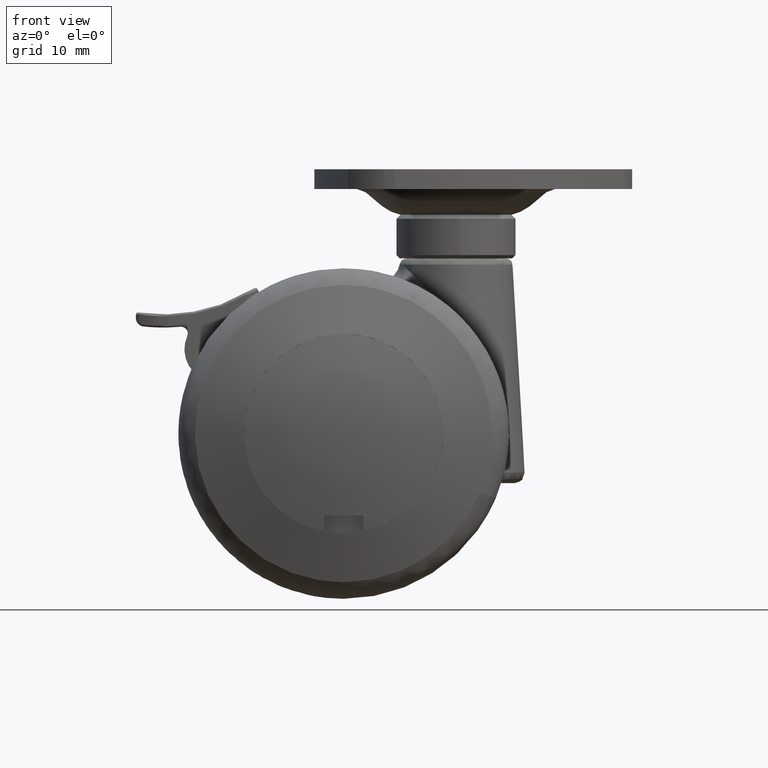
[diagram: clean part render]
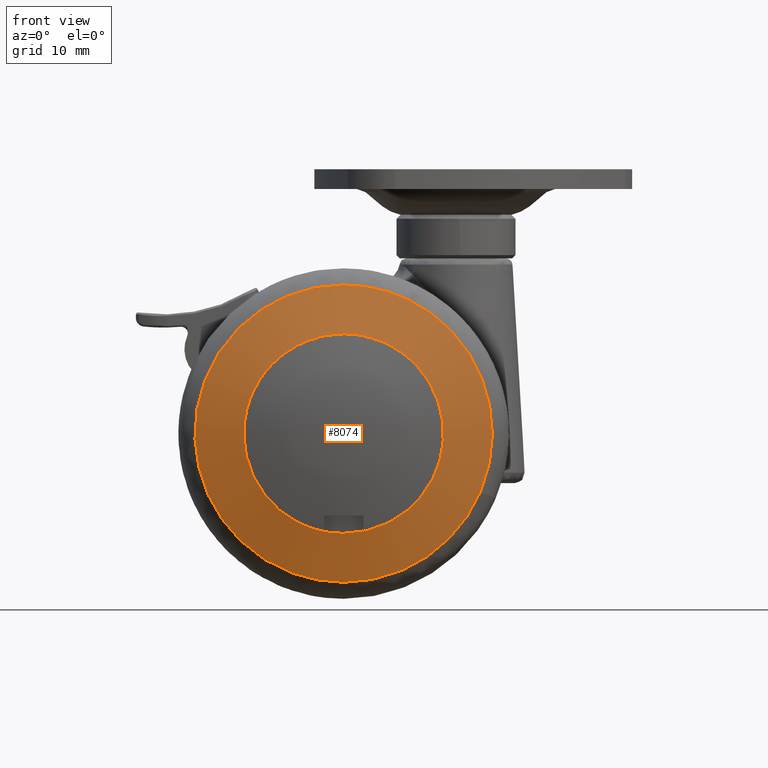
[diagram: same view with one face highlighted and labeled with its STEP entity id]
A machine part, front view. The second image highlights one B-rep face of the part: STEP entity #8074.
In plain terms, the highlighted face is a freeform B-spline surface patch.
Its self-contained STEP definition (entity closure, byte-faithful):
#7129=CARTESIAN_POINT('',(14.994446374600731,-22.500000000000000,-1.782306908599554));
#7130=VERTEX_POINT('',#7129);
#7136=CARTESIAN_POINT('',(0.0,-22.500000000000000,15.100001765886200));
#7137=VERTEX_POINT('',#7136);
#7138=CARTESIAN_POINT('',(14.994446374600738,-22.500000000000000,-1.782306908599555));
#7139=CARTESIAN_POINT('',(15.100001765886201,-22.500000000000000,-0.894279161936176));
#7140=CARTESIAN_POINT('',(15.100001765886200,-22.500000000000000,0.0));
#7141=CARTESIAN_POINT('',(15.100001765886196,-22.500000000000004,15.100001765886196));
#7142=CARTESIAN_POINT('',(0.0,-22.500000000000000,15.100001765886200));
#7150=(BOUNDED_CURVE()B_SPLINE_CURVE(2,(#7138,#7139,#7140,#7141,#7142),.UNSPECIFIED.,.F.,.U.)B_SPLINE_CURVE_WITH_KNOTS((3,2,3),(0.229562588379487,0.250000000000000,0.500000000000000),.UNSPECIFIED.)CURVE()GEOMETRIC_REPRESENTATION_ITEM()RATIONAL_B_SPLINE_CURVE((0.956026979325841,0.976056082905009,1.0,0.707106781186547,1.0))REPRESENTATION_ITEM(''));
#7151=EDGE_CURVE('',#7130,#7137,#7150,.T.);
#7153=CARTESIAN_POINT('',(-15.071838210919481,-22.500000000000000,0.921809601078580));
#7154=VERTEX_POINT('',#7153);
#7155=CARTESIAN_POINT('',(0.0,-22.500000000000000,15.100001765886200));
#7156=CARTESIAN_POINT('',(-14.204685391597728,-22.500000000000000,15.100001765886196));
#7157=CARTESIAN_POINT('',(-15.071838210919484,-22.500000000000000,0.921809601078580));
#7165=(BOUNDED_CURVE()B_SPLINE_CURVE(2,(#7155,#7156,#7157),.UNSPECIFIED.,.F.,.U.)B_SPLINE_CURVE_WITH_KNOTS((3,3),(0.500000000000000,0.739333230438314),.UNSPECIFIED.)CURVE()GEOMETRIC_REPRESENTATION_ITEM()RATIONAL_B_SPLINE_CURVE((1.0,0.719603679071602,0.976072616469698))REPRESENTATION_ITEM(''));
#7166=EDGE_CURVE('',#7137,#7154,#7165,.T.);
#7240=CARTESIAN_POINT('',(0.0,-22.500000000000000,-15.100001765886200));
#7241=VERTEX_POINT('',#7240);
#7242=CARTESIAN_POINT('',(-15.071838210919484,-22.500000000000000,0.921809601078580));
#7243=CARTESIAN_POINT('',(-15.100001765886200,-22.500000000000004,0.461335033543612));
#7244=CARTESIAN_POINT('',(-15.100001765886200,-22.500000000000000,0.0));
#7245=CARTESIAN_POINT('',(-15.100001765886196,-22.500000000000004,-15.100001765886196));
#7246=CARTESIAN_POINT('',(0.0,-22.500000000000000,-15.100001765886200));
#7254=(BOUNDED_CURVE()B_SPLINE_CURVE(2,(#7242,#7243,#7244,#7245,#7246),.UNSPECIFIED.,.F.,.U.)B_SPLINE_CURVE_WITH_KNOTS((3,2,3),(0.739333230438314,0.750000000000000,1.0),.UNSPECIFIED.)CURVE()GEOMETRIC_REPRESENTATION_ITEM()RATIONAL_B_SPLINE_CURVE((0.976072616469698,0.987503102114946,1.0,0.707106781186547,1.0))REPRESENTATION_ITEM(''));
#7255=EDGE_CURVE('',#7154,#7241,#7254,.T.);
#7257=CARTESIAN_POINT('',(0.0,-22.500000000000000,-15.100001765886200));
#7258=CARTESIAN_POINT('',(13.411446089595476,-22.500000000000000,-15.100001765886207));
#7259=CARTESIAN_POINT('',(14.994446374600738,-22.500000000000000,-1.782306908599555));
#7267=(BOUNDED_CURVE()B_SPLINE_CURVE(2,(#7257,#7258,#7259),.UNSPECIFIED.,.F.,.U.)B_SPLINE_CURVE_WITH_KNOTS((3,3),(0.0,0.229562588379487),.UNSPECIFIED.)CURVE()GEOMETRIC_REPRESENTATION_ITEM()RATIONAL_B_SPLINE_CURVE((1.0,0.731050698281538,0.956026979325841))REPRESENTATION_ITEM(''));
#7268=EDGE_CURVE('',#7241,#7130,#7267,.T.);
#7709=CARTESIAN_POINT('',(9.975672701329613,-20.052650238607200,20.167695820434520));
#7710=VERTEX_POINT('',#7709);
#7711=CARTESIAN_POINT('',(0.0,-20.052650239280950,22.500000010548298));
#7712=VERTEX_POINT('',#7711);
#7713=CARTESIAN_POINT('',(9.975672701329613,-20.052650238607203,20.167695820434524));
#7714=CARTESIAN_POINT('',(5.260481765120542,-20.052650239280958,22.500000010548298));
#7715=CARTESIAN_POINT('',(0.0,-20.052650239280950,22.500000010548298));
#7723=(BOUNDED_CURVE()B_SPLINE_CURVE(2,(#7713,#7714,#7715),.UNSPECIFIED.,.F.,.U.)B_SPLINE_CURVE_WITH_KNOTS((3,3),(0.424637790835173,0.500000000000000),.UNSPECIFIED.)CURVE()GEOMETRIC_REPRESENTATION_ITEM()RATIONAL_B_SPLINE_CURVE((0.876646594192723,0.911707679923284,1.0))REPRESENTATION_ITEM(''));
#7724=EDGE_CURVE('',#7710,#7712,#7723,.T.);
#7744=CARTESIAN_POINT('',(20.705216575703830,-20.052650239161910,-8.805907508094617));
#7745=VERTEX_POINT('',#7744);
#7759=CARTESIAN_POINT('',(0.0,-20.052650239280950,-22.500000010548298));
#7760=VERTEX_POINT('',#7759);
#7761=CARTESIAN_POINT('',(0.0,-20.052650239280950,-22.500000010548298));
#7762=CARTESIAN_POINT('',(14.881132990301916,-20.052650239280950,-22.500000010548295));
#7763=CARTESIAN_POINT('',(20.705216575703833,-20.052650239161910,-8.805907508094617));
#7771=(BOUNDED_CURVE()B_SPLINE_CURVE(2,(#7761,#7762,#7763),.UNSPECIFIED.,.F.,.U.)B_SPLINE_CURVE_WITH_KNOTS((3,3),(0.0,0.183550134662797),.UNSPECIFIED.)CURVE()GEOMETRIC_REPRESENTATION_ITEM()RATIONAL_B_SPLINE_CURVE((1.0,0.784957640979883,0.885683713610550))REPRESENTATION_ITEM(''));
#7772=EDGE_CURVE('',#7760,#7745,#7771,.T.);
#7774=CARTESIAN_POINT('',(0.0,-20.052650239280950,22.500000010548298));
#7775=CARTESIAN_POINT('',(-22.500000010548291,-20.052650239280958,22.500000010548291));
#7776=CARTESIAN_POINT('',(-22.500000010548298,-20.052650239280950,0.0));
#7777=CARTESIAN_POINT('',(-22.500000010548291,-20.052650239280958,-22.500000010548291));
#7778=CARTESIAN_POINT('',(0.0,-20.052650239280950,-22.500000010548298));
#7786=(BOUNDED_CURVE()B_SPLINE_CURVE(2,(#7774,#7775,#7776,#7777,#7778),.UNSPECIFIED.,.F.,.U.)B_SPLINE_CURVE_WITH_KNOTS((3,2,3),(0.500000000000000,0.750000000000000,1.0),.UNSPECIFIED.)CURVE()GEOMETRIC_REPRESENTATION_ITEM()RATIONAL_B_SPLINE_CURVE((1.0,0.707106781186548,1.0,0.707106781186548,1.0))REPRESENTATION_ITEM(''));
#7787=EDGE_CURVE('',#7712,#7760,#7786,.T.);
#7809=CARTESIAN_POINT('',(20.705216575703833,-20.052650239161910,-8.805907508094617));
#7810=CARTESIAN_POINT('',(22.500000010548302,-20.052650239280954,-4.585856400661019));
#7811=CARTESIAN_POINT('',(22.500000010548298,-20.052650239280950,0.0));
#7812=CARTESIAN_POINT('',(22.500000010548302,-20.052650239280958,13.972709978107973));
#7813=CARTESIAN_POINT('',(9.975672701329613,-20.052650238607196,20.167695820434517));
#7821=(BOUNDED_CURVE()B_SPLINE_CURVE(2,(#7809,#7810,#7811,#7812,#7813),.UNSPECIFIED.,.F.,.U.)B_SPLINE_CURVE_WITH_KNOTS((3,2,3),(0.183550134662797,0.250000000000000,0.424637790835173),.UNSPECIFIED.)CURVE()GEOMETRIC_REPRESENTATION_ITEM()RATIONAL_B_SPLINE_CURVE((0.885683713610550,0.922149140206664,1.0,0.795399101263263,0.876646594192723))REPRESENTATION_ITEM(''));
#7822=EDGE_CURVE('',#7745,#7710,#7821,.T.);
#8038=CARTESIAN_POINT('',(-23.529031152138892,-14.358802987606852,-23.529032246446722));
#8039=CARTESIAN_POINT('',(-12.279879532432092,-19.174364121991974,-24.559760207110013));
#8040=CARTESIAN_POINT('',(12.279867601254047,-19.174364121991953,-24.559760207110013));
#8041=CARTESIAN_POINT('',(23.529010210098853,-14.358811952515833,-23.529034165305625));
#8042=CARTESIAN_POINT('',(-24.559759164940136,-19.174364589546670,-12.279880153592970));
#8043=CARTESIAN_POINT('',(-12.842464883672800,-24.431162000000089,-12.842465480960909));
#8044=CARTESIAN_POINT('',(12.842452405884670,-24.431162000000079,-12.842465480960909));
#8045=CARTESIAN_POINT('',(24.559737393240539,-19.174374357104799,-12.279881198922373));
#8046=CARTESIAN_POINT('',(-24.559759164940136,-19.174364589546670,12.279879656306047));
#8047=CARTESIAN_POINT('',(-12.842464883672800,-24.431162000000089,12.842464960891490));
#8048=CARTESIAN_POINT('',(12.842452405884670,-24.431162000000079,12.842464960891490));
#8049=CARTESIAN_POINT('',(24.559737393240539,-19.174374357104799,12.279880701635408));
#8050=CARTESIAN_POINT('',(-23.529031232116207,-14.358803361260954,23.529031373590627));
#8051=CARTESIAN_POINT('',(-12.279879576001029,-19.174364529100203,24.559759299674045));
#8052=CARTESIAN_POINT('',(12.279867644822941,-19.174364529100181,24.559759299674045));
#8053=CARTESIAN_POINT('',(23.529010290076094,-14.358812326170000,23.529033292449469));
#8061=(BOUNDED_SURFACE()B_SPLINE_SURFACE(2,2,((#8038,#8042,#8046,#8050),(#8039,#8043,#8047,#8051),(#8040,#8044,#8048,#8052),(#8041,#8045,#8049,#8053)),.UNSPECIFIED.,.F.,.F.,.U.)B_SPLINE_SURFACE_WITH_KNOTS((3,1,3),(3,1,3),(9.826574003028870,34.408243677051843,58.989889467430118),(9.826572859764099,34.408243677051850,58.989913498878479),.UNSPECIFIED.)GEOMETRIC_REPRESENTATION_ITEM()RATIONAL_B_SPLINE_SURFACE(((1.091627173310567,1.045813584524547,1.045813584524547,1.091627169600027),(1.045813588786020,1.0,1.0,1.045813585075480),(1.045813588786020,1.0,1.0,1.045813585075480),(1.091627084285301,1.045813495499281,1.045813495499281,1.091627080574761)))REPRESENTATION_ITEM('')SURFACE());
#8062=ORIENTED_EDGE('',*,*,#7772,.T.);
#8063=ORIENTED_EDGE('',*,*,#7822,.T.);
#8064=ORIENTED_EDGE('',*,*,#7724,.T.);
#8065=ORIENTED_EDGE('',*,*,#7787,.T.);
#8066=EDGE_LOOP('',(#8062,#8063,#8064,#8065));
#8067=FACE_OUTER_BOUND('',#8066,.T.);
#8068=ORIENTED_EDGE('',*,*,#7166,.F.);
#8069=ORIENTED_EDGE('',*,*,#7151,.F.);
#8070=ORIENTED_EDGE('',*,*,#7268,.F.);
#8071=ORIENTED_EDGE('',*,*,#7255,.F.);
#8072=EDGE_LOOP('',(#8068,#8069,#8070,#8071));
#8073=FACE_BOUND('',#8072,.T.);
#8074=ADVANCED_FACE('',(#8067,#8073),#8061,.T.);